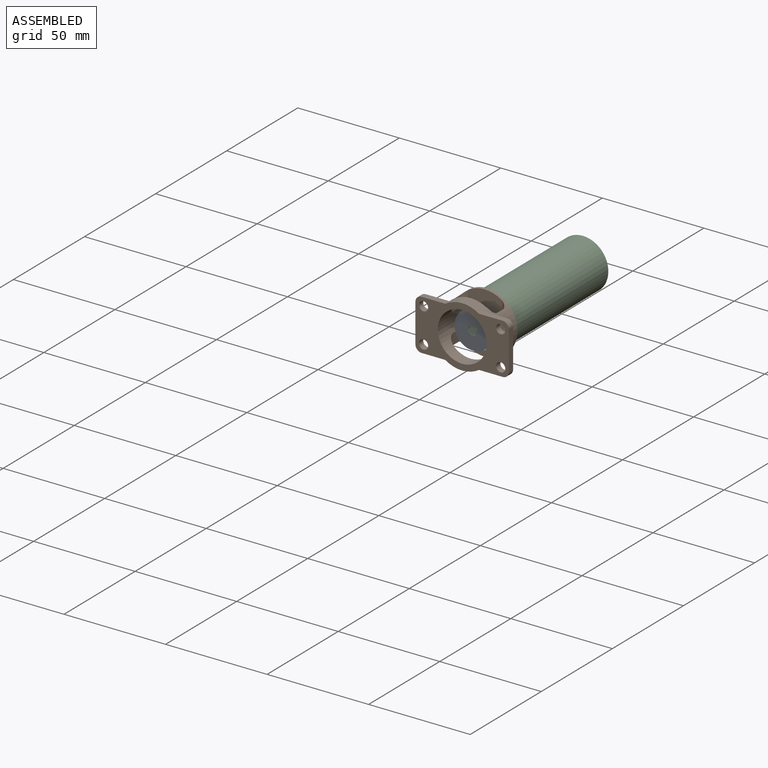
[diagram: assembled view]
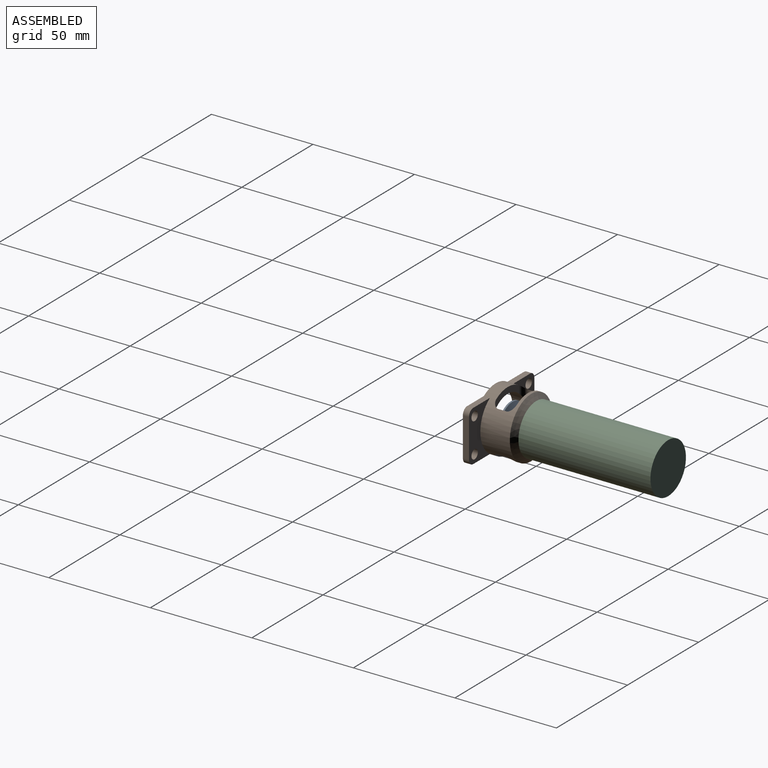
[diagram: assembled view, second angle]
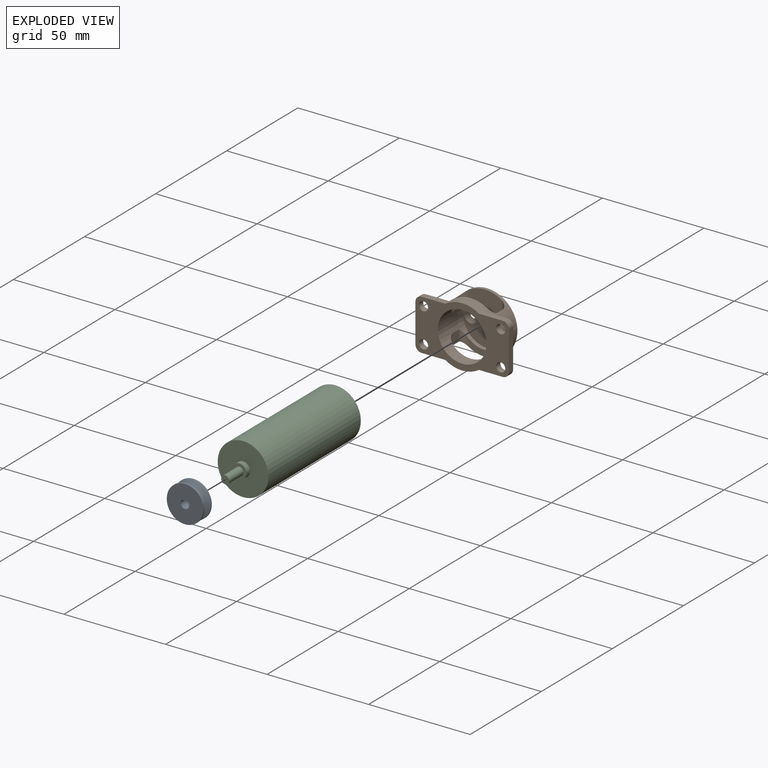
[diagram: exploded view]
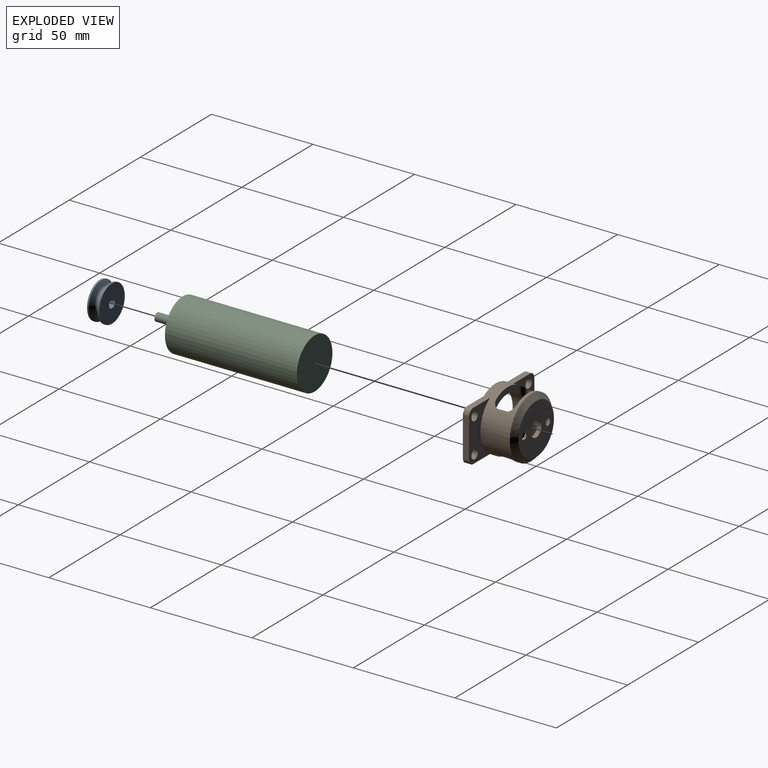
[diagram: exploded view, second angle]
ASSEMBLY  parts=3 mates=4
PART A: 9 faces, bbox 18x18x6 mm
  f0: cone r=6.91mm half-angle=61.2deg, axis (0,0,-1), area 119.1mm2, adj f1,f6
  f1: torus R=7.49mm, axis (0,0,-1), area 104.8mm2, adj f0,f2
  f2: cone r=9mm half-angle=61.2deg, axis (0,0,1), area 119.1mm2, adj f1,f3
  f3: cylinder r=9mm len=18mm, axis (0,0,-1), area 45.2mm2, adj f2,f4
  f4: plane 18x18mm, normal (0,0,1), area 241.2mm2, adj f3,f7,f8
  f5: plane 18x18mm, normal (0,0,-1), area 241.2mm2, adj f6,f7,f8
  f6: cylinder r=9mm len=18mm, axis (0,0,-1), area 45.2mm2, adj f0,f5
  f7: cylinder r=2.15mm len=6mm, axis (0,0,1), area 61.3mm2, adj f4,f5,f8
  f8: plane 6x2.98mm, normal (1,0,0), area 17.9mm2, adj f4,f5,f7
PART B: 43 faces, bbox 46x20x30 mm
  f0: plane 24x24mm, normal (0,-1,0), area 347.8mm2, adj f3,f6,f32,f33
  f1: cylinder r=1.6mm len=3.2mm, axis (0,1,0), area 5mm2, adj f5,f33
  f2: cylinder r=1.6mm len=3.2mm, axis (0,1,0), area 5mm2, adj f5,f32
  f3: cylinder r=3.75mm len=7.5mm, axis (0,1,0), area 47.1mm2, adj f0,f5
  f4: cylinder r=15mm len=30mm, axis (0,1,0), area 999.5mm2, adj f7,f8,f9,f10,f12,f13,f15,f16
  f5: plane 25x25mm, normal (0,1,0), area 430.6mm2, adj f1,f2,f3,f38
  f6: cylinder r=12mm len=24mm, axis (0,1,0), area 832mm2, adj f0,f15,f16,f17,f18,f19,f20,f21
  f7: plane 25x14.71mm, normal (0,1,0), area 214mm2, adj f4,f10,f11,f12,f35,f36,f41,f42
  f8: plane 25x14.71mm, normal (0,1,0), area 214mm2, adj f4,f9,f13,f14,f34,f37,f39,f40
  f9: plane 11.71x3mm, normal (0,0,-1), area 35.1mm2, adj f4,f8,f15,f40
  f10: plane 11.71x3mm, normal (0,0,-1), area 35.1mm2, adj f4,f7,f15,f41
  f11: plane 19x3mm, normal (1,0,0), area 57mm2, adj f7,f15,f41,f42
  f12: plane 11.71x3mm, normal (0,0,1), area 35.1mm2, adj f4,f7,f15,f42
  f13: plane 11.71x3mm, normal (0,0,1), area 35.1mm2, adj f4,f8,f15,f39
  f14: plane 19x3mm, normal (-1,0,0), area 57mm2, adj f8,f15,f39,f40
  f15: plane 46x30mm, normal (0,-1,0), area 682.5mm2, adj f4,f6,f9,f10,f11,f12,f13,f14
  f16: plane 5.4x4mm, normal (1,0,0), area 21.6mm2, adj f4,f6,f26,f27
  f17: plane 16x6.06mm, normal (0,-1,0), area 51.4mm2, adj f4,f6,f25,f26
  f18: plane 5.4x4mm, normal (-1,0,0), area 21.6mm2, adj f4,f6,f24,f25
  f19: plane 16x6.06mm, normal (0,1,0), area 51.4mm2, adj f4,f6,f24,f27
  f20: plane 16x6.06mm, normal (0,1,0), area 51.4mm2, adj f4,f6,f28,f31
  f21: plane 5.4x4mm, normal (-1,0,0), area 21.6mm2, adj f4,f6,f28,f29
  f22: plane 16x6.06mm, normal (0,-1,0), area 51.4mm2, adj f4,f6,f29,f30
  f23: plane 5.4x4mm, normal (1,0,0), area 21.6mm2, adj f4,f6,f30,f31
  f24: cylinder r=3mm len=7.89mm, axis (0,0,-1), area 21.8mm2, adj f4,f6,f18,f19
  f25: cylinder r=3mm len=7.89mm, axis (0,0,1), area 21.8mm2, adj f4,f6,f17,f18
  f26: cylinder r=3mm len=7.89mm, axis (0,0,-1), area 21.8mm2, adj f4,f6,f16,f17
  f27: cylinder r=3mm len=7.89mm, axis (0,0,1), area 21.8mm2, adj f4,f6,f16,f19
  f28: cylinder r=3mm len=7.89mm, axis (0,0,-1), area 21.8mm2, adj f4,f6,f20,f21
  f29: cylinder r=3mm len=7.89mm, axis (0,0,1), area 21.8mm2, adj f4,f6,f21,f22
  f30: cylinder r=3mm len=7.89mm, axis (0,0,-1), area 21.8mm2, adj f4,f6,f22,f23
  f31: cylinder r=3mm len=7.89mm, axis (0,0,1), area 21.8mm2, adj f4,f6,f20,f23
  f32: cone r=1.6mm half-angle=45deg, axis (0,-1,0), area 31.3mm2, adj f0,f2
  f33: cone r=1.6mm half-angle=45deg, axis (0,-1,0), area 31.3mm2, adj f0,f1
  f34: cylinder r=2.25mm len=4.5mm, axis (0,1,0), area 42.4mm2, adj f8,f15
  f35: cylinder r=2.25mm len=4.5mm, axis (0,1,0), area 42.4mm2, adj f7,f15
  f36: cylinder r=2.25mm len=4.5mm, axis (0,1,0), area 42.4mm2, adj f7,f15
  f37: cylinder r=2.25mm len=4.5mm, axis (0,1,0), area 42.4mm2, adj f8,f15
  f38: cone r=15mm half-angle=45deg, axis (0,-1,0), area 305.4mm2, adj f4,f5
  f39: cylinder r=3mm len=3mm, axis (0,1,0), area 14.1mm2, adj f8,f13,f14,f15
  f40: cylinder r=3mm len=3mm, axis (0,1,0), area 14.1mm2, adj f8,f9,f14,f15
  f41: cylinder r=3mm len=3mm, axis (0,1,0), area 14.1mm2, adj f7,f10,f11,f15
  f42: cylinder r=3mm len=3mm, axis (0,1,0), area 14.1mm2, adj f7,f11,f12,f15
PART C: 7 faces, bbox 25x77.5x25 mm
  f0: cylinder r=12.5mm len=65mm, axis (0,1,0), area 5105.1mm2, adj f1,f2
  f1: plane 25x25mm, normal (0,-1,0), area 490.9mm2, adj f0
  f2: plane 25x25mm, normal (0,1,0), area 452.4mm2, adj f0,f3
  f3: cylinder r=3.5mm len=7mm, axis (0,-1,0), area 55mm2, adj f2,f4
  f4: plane 7x7mm, normal (0,1,0), area 25.9mm2, adj f3,f5
  f5: cylinder r=2mm len=10mm, axis (0,-1,0), area 125.7mm2, adj f4,f6
  f6: plane 4x4mm, normal (0,1,0), area 12.6mm2, adj f5
PLACE A rot(axis=(-0.58,0.58,0.58),120deg) t=(0,-9.5,0)mm
PLACE B at identity fixed
PLACE C rot(axis=(0,0,1),180deg) t=(0,0,0)mm
MATE planar C.f0 <-> B.f4  axis (0,-1,0) through (0,0,0)mm
MATE cylindrical C.f0 <-> B.f3  axis (0,-1,0) through (0,32.5,0)mm
MATE planar A.f0 <-> C.f5  axis (0,-1,0) through (0,-12.5,0.01)mm
MATE cylindrical A.f7 <-> C.f5  axis (0,1,0) through (0,-9.5,0)mm
